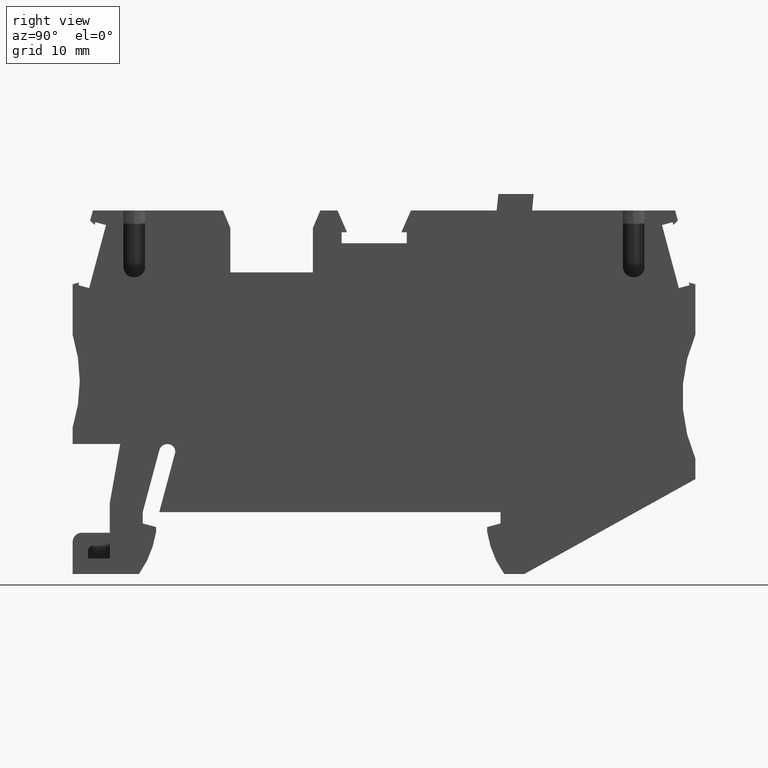
[diagram: clean part render]
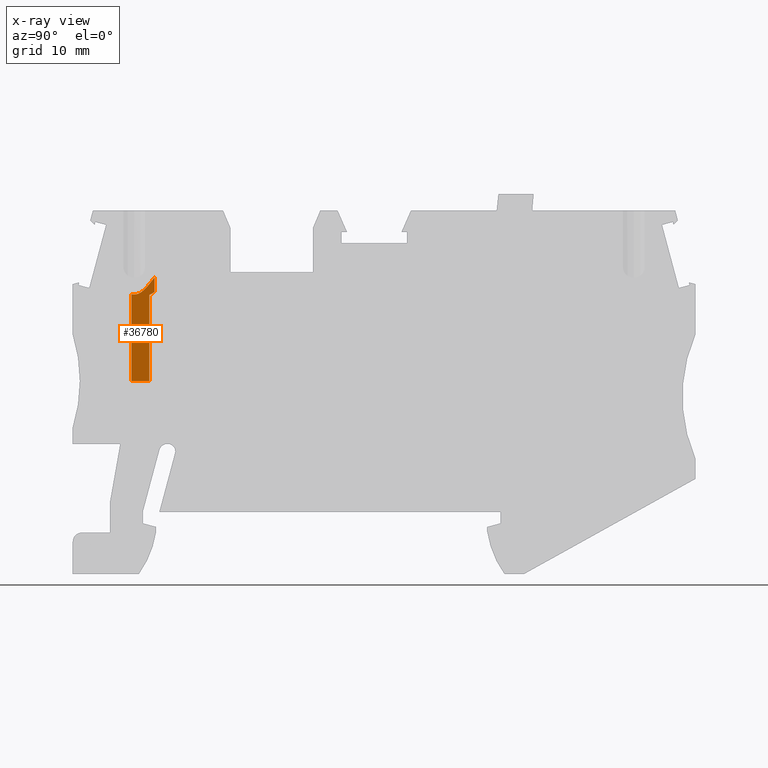
[diagram: x-ray — body ghosted, one internal face saturated and labeled with its STEP entity id]
A machine part, right view, then the same camera in x-ray: the body is ghosted and one INTERNAL B-rep face — a face not visible from any outside direction — is saturated and labeled: STEP entity #36780.
In plain terms, the highlighted planar face has unit normal (-1, 0, -0).
Its self-contained STEP definition (entity closure, byte-faithful):
#31900=CARTESIAN_POINT('',(-16.3428327783243,-15.6445224466539,
51.2700000000041));
#31910=DIRECTION('',(9.82847595262712E-14,1.,0.));
#31920=DIRECTION('',(-1.,9.7158392442509E-14,-1.24382875640964E-16));
#31930=AXIS2_PLACEMENT_3D('',#31900,#31910,#31920);
#31940=CONICAL_SURFACE('',#31930,2.4,0.5235987755983);
#34290=CARTESIAN_POINT('',(-14.4303736284335,-15.6445224466525,
52.720000000004));
#34300=VERTEX_POINT('',#34290);
#34330=CARTESIAN_POINT('',(-14.430373628433,-6.9902184466547,
52.7200000000041));
#34340=DIRECTION('',(-2.14536721721004E-13,-1.,8.45638444024485E-18));
#34350=VECTOR('',#34340,1.);
#34360=LINE('',#34330,#34350);
#34370=CARTESIAN_POINT('',(-14.4303736284351,-17.0682843751335,
52.7200000000042));
#34380=VERTEX_POINT('',#34370);
#34390=EDGE_CURVE('',#34300,#34380,#34360,.T.);
#34870=CARTESIAN_POINT('',(15.6638480474138,0.306622610467798,
52.7200000000042));
#34880=DIRECTION('',(-0.866025403784467,-0.49999999999995,
-1.03490537880703E-16));
#34890=VECTOR('',#34880,1.);
#34900=LINE('',#34870,#34890);
#34910=CARTESIAN_POINT('',(-14.9183196337143,-17.3500001326314,
52.7200000000041));
#34920=VERTEX_POINT('',#34910);
#34930=EDGE_CURVE('',#34380,#34920,#34900,.T.);
#35220=CARTESIAN_POINT('',(-16.5335764826809,-18.2945224466541,
52.7200000000041));
#35230=DIRECTION('',(1.24382875640963E-16,-8.45638444027153E-18,-1.));
#35240=DIRECTION('',(1.,-9.71445146547012E-14,1.24382875640964E-16));
#35250=AXIS2_PLACEMENT_3D('',#35220,#35230,#35240);
#35260=PLANE('',#35250);
#35270=CARTESIAN_POINT('',(15.6638480474141,-25.6999999999998,
52.7200000000042));
#35280=DIRECTION('',(1.,1.10467190950203E-14,1.24382875640963E-16));
#35290=VECTOR('',#35280,1.);
#35300=LINE('',#35270,#35290);
#35310=CARTESIAN_POINT('',(-16.6678327783269,-25.7000000000001,
52.7200000000041));
#35320=VERTEX_POINT('',#35310);
#35330=CARTESIAN_POINT('',(-14.9183196337142,-25.7000000000001,
52.7200000000041));
#35340=VERTEX_POINT('',#35330);
#35350=EDGE_CURVE('',#35320,#35340,#35300,.T.);
#35360=ORIENTED_EDGE('',*,*,#35350,.F.);
#35370=CARTESIAN_POINT('',(-14.9183196337144,1.30029320644098E-12,
52.7200000000041));
#35380=DIRECTION('',(9.39526234589039E-15,-1.,8.4563844402727E-18));
#35390=VECTOR('',#35380,1.);
#35400=LINE('',#35370,#35390);
#35410=EDGE_CURVE('',#34920,#35340,#35400,.T.);
#35420=ORIENTED_EDGE('',*,*,#35410,.T.);
#35430=ORIENTED_EDGE('',*,*,#34930,.T.);
#35440=ORIENTED_EDGE('',*,*,#34390,.T.);
#35450=CARTESIAN_POINT('',(-16.3428327783258,-17.2899707138443,
52.7200000000041));
#35460=CARTESIAN_POINT('',(-16.3292943042648,-17.2899707138443,
52.7200000000041));
#35470=CARTESIAN_POINT('',(-16.3157351983007,-17.2896419499035,
52.7200000000041));
#35480=CARTESIAN_POINT('',(-16.3021730202063,-17.2889835099416,
52.7200000000041));
#35490=CARTESIAN_POINT('',(-16.2886109178048,-17.2883250736546,
52.7200000000041));
#35500=CARTESIAN_POINT('',(-16.2750460781787,-17.2873369516305,
52.7200000000041));
#35510=CARTESIAN_POINT('',(-16.2614979949154,-17.2860227420375,
52.7200000000041));
#35520=CARTESIAN_POINT('',(-16.2479499538615,-17.2847085365389,
52.7200000000041));
#35530=CARTESIAN_POINT('',(-16.2344189980427,-17.2830682731594,
52.7200000000036));
#35540=CARTESIAN_POINT('',(-16.2209253275624,-17.281110224506,
52.7200000000036));
#35550=CARTESIAN_POINT('',(-16.2074316708814,-17.2791521778549,
52.7200000000036));
#35560=CARTESIAN_POINT('',(-16.193975599227,-17.2768764077949,
52.7200000000027));
#35570=CARTESIAN_POINT('',(-16.1805769789593,-17.2742956291562,
52.7200000000027));
#35580=CARTESIAN_POINT('',(-16.1671783490631,-17.2717148486629,
52.7200000000027));
#35590=CARTESIAN_POINT('',(-16.1538374252632,-17.268829142847,
52.720000000002));
#35600=CARTESIAN_POINT('',(-16.1405729253491,-17.2656551301044,
52.720000000002));
#35610=CARTESIAN_POINT('',(-16.1273083968791,-17.2624811105289,
52.720000000002));
#35620=CARTESIAN_POINT('',(-16.1141204945192,-17.2590188770311,
52.7200000000026));
#35630=CARTESIAN_POINT('',(-16.101026202225,-17.2552882111528,
52.7200000000026));
#35640=CARTESIAN_POINT('',(-16.0748365913709,-17.247826587005,
52.7200000000026));
#35650=CARTESIAN_POINT('',(-16.0490262357034,-17.2392906463764,
52.7200000000041));
#35660=CARTESIAN_POINT('',(-16.0237019093393,-17.2298624719458,
52.7200000000041));
#35670=CARTESIAN_POINT('',(-15.9983721200633,-17.2204322636887,
52.7200000000041));
#35680=CARTESIAN_POINT('',(-15.9733832442913,-17.2100583322197,
52.7200000000041));
#35690=CARTESIAN_POINT('',(-15.9487352275113,-17.1988613143543,
52.7200000000041));
#35700=CARTESIAN_POINT('',(-15.9240871497142,-17.1876642687702,
52.7200000000041));
#35710=CARTESIAN_POINT('',(-15.8997795169195,-17.1756440894236,
52.7200000000041));
#35720=CARTESIAN_POINT('',(-15.8758117558646,-17.1629171618673,
52.7200000000041));
#35730=CARTESIAN_POINT('',(-15.851843970093,-17.1501902211864,
52.7200000000041));
#35740=CARTESIAN_POINT('',(-15.8282156471718,-17.1367563690852,
52.7200000000041));
#35750=CARTESIAN_POINT('',(-15.8049278200811,-17.1227272977964,
52.7200000000041));
#35760=CARTESIAN_POINT('',(-15.7816400000363,-17.1086982307522,
52.7200000000041));
#35770=CARTESIAN_POINT('',(-15.7586923461197,-17.0940737462579,
52.7200000000041));
#35780=CARTESIAN_POINT('',(-15.7360889070998,-17.0789612580018,
52.7200000000041));
#35790=CARTESIAN_POINT('',(-15.713485495444,-17.063848788041,
52.7200000000041));
#35800=CARTESIAN_POINT('',(-15.6912260600155,-17.0482481285259,
52.7199999999831));
#35810=CARTESIAN_POINT('',(-15.6693183676773,-17.0322631008446,
52.7199999999831));
#35820=CARTESIAN_POINT('',(-15.6474013924807,-17.0162712998919,
52.7199999999831));
#35830=CARTESIAN_POINT('',(-15.625877782421,-16.9999273113839,
52.7199999999946));
#35840=CARTESIAN_POINT('',(-15.6046313106696,-16.9832314368155,
52.7199999999946));
#35850=CARTESIAN_POINT('',(-15.5833821568609,-16.9665334546363,
52.7199999999946));
#35860=CARTESIAN_POINT('',(-15.5624128019957,-16.9494837553501,
52.7200000000041));
#35870=CARTESIAN_POINT('',(-15.5416943880988,-16.9321294559765,
52.7200000000041));
#35880=CARTESIAN_POINT('',(-15.5209758896078,-16.9147750857447,
52.7200000000041));
#35890=CARTESIAN_POINT('',(-15.5005080925218,-16.8971157807207,
52.7200000000041));
#35900=CARTESIAN_POINT('',(-15.4802653746817,-16.8791905324853,
52.7200000000041));
#35910=CARTESIAN_POINT('',(-15.4600226097754,-16.861265242572,
52.7200000000041));
#35920=CARTESIAN_POINT('',(-15.4400047668123,-16.8430737505517,
52.7200000000041));
#35930=CARTESIAN_POINT('',(-15.4201896273423,-16.8246489346476,
52.7200000000041));
#35940=CARTESIAN_POINT('',(-15.4003744667203,-16.8062240990758,
52.7200000000041));
#35950=CARTESIAN_POINT('',(-15.3807619092757,-16.7875657434327,
52.7200000000041));
#35960=CARTESIAN_POINT('',(-15.3613330787208,-16.7687022294481,
52.7200000000041));
#35970=CARTESIAN_POINT('',(-15.3419042439829,-16.749838711402,
52.7200000000041));
#35980=CARTESIAN_POINT('',(-15.3226590746163,-16.7307698888216,
52.7200000000041));
#35990=CARTESIAN_POINT('',(-15.3035818368223,-16.7115208326519,
52.7200000000041));
#36000=CARTESIAN_POINT('',(-15.2845046051091,-16.6922717826176,
52.7200000000041));
#36010=CARTESIAN_POINT('',(-15.2655952695526,-16.6728423917733,
52.7200000000041));
#36020=CARTESIAN_POINT('',(-15.2468409622412,-16.6532553525717,
52.7200000000041));
#36030=CARTESIAN_POINT('',(-15.2093326166634,-16.6140815551596,
52.7200000000041));
#36040=CARTESIAN_POINT('',(-15.1724415775094,-16.574277638415,
52.7200000000041));
#36050=CARTESIAN_POINT('',(-15.1360950238079,-16.5340068529717,
52.7200000000041));
#36060=CARTESIAN_POINT('',(-15.0997486110045,-16.4937362236388,
52.7200000000041));
#36070=CARTESIAN_POINT('',(-15.0639466948452,-16.4529975122142,
52.7200000000041));
#36080=CARTESIAN_POINT('',(-15.0286465360762,-16.4119375714403,
52.7200000000041));
#36090=CARTESIAN_POINT('',(-14.993340265949,-16.3708705221429,
52.7200000000041));
#36100=CARTESIAN_POINT('',(-14.9585762889177,-16.3295310591369,
52.7199999999913));
#36110=CARTESIAN_POINT('',(-14.9241559532367,-16.2878377190566,
52.7199999999913));
#36120=CARTESIAN_POINT('',(-14.8897418059278,-16.2461518749489,
52.7199999999913));
#36130=CARTESIAN_POINT('',(-14.8557061716529,-16.2041519230004,
52.7200000000041));
#36140=CARTESIAN_POINT('',(-14.8219933250429,-16.1618897516298,
52.7200000000041));
#36150=CARTESIAN_POINT('',(-14.7882804364147,-16.1196275275853,
52.7200000000041));
#36160=CARTESIAN_POINT('',(-14.7548903243207,-16.0771025986621,
52.7200000000041));
#36170=CARTESIAN_POINT('',(-14.7217782805485,-16.0343562448526,
52.7200000000041));
#36180=CARTESIAN_POINT('',(-14.6886662232882,-15.9916098736306,
52.7200000000041));
#36190=CARTESIAN_POINT('',(-14.6558322522868,-15.9486417568259,
52.7200000000041));
#36200=CARTESIAN_POINT('',(-14.6232405174714,-15.9054858852001,
52.7200000000041));
#36210=CARTESIAN_POINT('',(-14.5906487846556,-15.8623300162221,
52.7200000000041));
#36220=CARTESIAN_POINT('',(-14.5582993195889,-15.8189861805476,
52.7200000000041));
#36230=CARTESIAN_POINT('',(-14.5261634209569,-15.7754832993153,
52.7200000000041));
#36240=CARTESIAN_POINT('',(-14.494027531129,-15.7319804300013,
52.7200000000041));
#36250=CARTESIAN_POINT('',(-14.4621052450975,-15.6883183765745,
52.7200000000041));
#36260=CARTESIAN_POINT('',(-14.4303736284334,-15.6445224466536,
52.7200000000041));
#36270=B_SPLINE_CURVE_WITH_KNOTS('',3,(#35450,#35460,#35470,#35480,
#35490,#35500,#35510,#35520,#35530,#35540,#35550,#35560,#35570,#35580,
#35590,#35600,#35610,#35620,#35630,#35640,#35650,#35660,#35670,#35680,
#35690,#35700,#35710,#35720,#35730,#35740,#35750,#35760,#35770,#35780,
#35790,#35800,#35810,#35820,#35830,#35840,#35850,#35860,#35870,#35880,
#35890,#35900,#35910,#35920,#35930,#35940,#35950,#35960,#35970,#35980,
#35990,#36000,#36010,#36020,#36030,#36040,#36050,#36060,#36070,#36080,
#36090,#36100,#36110,#36120,#36130,#36140,#36150,#36160,#36170,#36180,
#36190,#36200,#36210,#36220,#36230,#36240,#36250,#36260),.UNSPECIFIED.,
.F.,.F.,(4,3,3,3,3,3,3,3,3,3,3,3,3,3,3,3,3,3,3,3,3,3,3,3,3,3,3,4),(0.,
0.0406757292667501,0.0814623168599995,0.12233513120195,0.163258542289737
,0.204188482706833,0.2450745451966,0.326492896131912,0.407633290064072,
0.488946970045198,0.570441599555911,0.65202281313679,0.733508724120969,
0.814682725570968,0.895756784196192,0.976852205749027,1.0579953221223,
1.13920112883486,1.22047303014071,1.30180295515494,1.4645505600788,
1.62717702907068,1.7894112138411,1.95158615350891,2.11378447957647,
2.27601144746608,2.43826088857872,2.60051567672069),.UNSPECIFIED.);
#36280=SURFACE_CURVE('',#36270,(#31940,#35260),.CURVE_3D.);
#36290=CARTESIAN_POINT('',(-16.3428327783258,-17.2899707138443,
52.7200000000041));
#36300=VERTEX_POINT('',#36290);
#36310=EDGE_CURVE('',#36300,#34300,#36280,.T.);
#36320=ORIENTED_EDGE('',*,*,#36310,.T.);
#36330=CARTESIAN_POINT('',(148.304479673356,-17.2899707138629,
52.7200000000042));
#36340=DIRECTION('',(1.,-1.13048459482457E-13,1.24382875640964E-16));
#36350=VECTOR('',#36340,1.);
#36360=LINE('',#36330,#36350);
#36370=CARTESIAN_POINT('',(-16.4428327783245,-17.2899707138443,
52.7200000000041));
#36380=VERTEX_POINT('',#36370);
#36390=EDGE_CURVE('',#36380,#36300,#36360,.T.);
#36400=ORIENTED_EDGE('',*,*,#36390,.T.);
#36410=CARTESIAN_POINT('',(-16.5335764826811,-18.2945224466541,
52.7200000000041));
#36420=DIRECTION('',(1.24382875640963E-16,-8.45638444027153E-18,-1.));
#36430=DIRECTION('',(1.,-1.13048459482457E-13,1.24382875640964E-16));
#36440=AXIS2_PLACEMENT_3D('',#36410,#36420,#36430);
#36450=PLANE('',#36440);
#36460=CARTESIAN_POINT('',(-16.4428327783243,-15.6445224466539,
51.2700000000041));
#36470=DIRECTION('',(8.80289585322254E-14,1.,0.));
#36480=DIRECTION('',(-1.,9.7158392442509E-14,-1.24382875640964E-16));
#36490=AXIS2_PLACEMENT_3D('',#36460,#36470,#36480);
#36500=CONICAL_SURFACE('',#36490,2.4,0.523598775598299);
#36510=CARTESIAN_POINT('',(-16.4428327782957,-17.2899707138443,
52.7200000000041));
#36520=CARTESIAN_POINT('',(-16.4618194178063,-17.289970713845,
52.7200000000041));
#36530=CARTESIAN_POINT('',(-16.4808307742775,-17.2893231063803,
52.7200000000041));
#36540=CARTESIAN_POINT('',(-16.4998034737538,-17.2880329619891,
52.7200000000041));
#36550=CARTESIAN_POINT('',(-16.5187761619401,-17.2867428183656,
52.7200000000041));
#36560=CARTESIAN_POINT('',(-16.5377082460672,-17.2848103415672,
52.7200000000041));
#36570=CARTESIAN_POINT('',(-16.5565377991921,-17.2822606885972,
52.7200000000041));
#36580=CARTESIAN_POINT('',(-16.5753674759552,-17.2797110188858,
52.7200000000041));
#36590=CARTESIAN_POINT('',(-16.5940929611376,-17.276544622085,
52.7200000000041));
#36600=CARTESIAN_POINT('',(-16.6126591516292,-17.2728038427079,
52.7200000000041));
#36610=CARTESIAN_POINT('',(-16.6312255931342,-17.2690630127559,
52.7200000000041));
#36620=CARTESIAN_POINT('',(-16.6496315065029,-17.264748374063,
52.7200000000041));
#36630=CARTESIAN_POINT('',(-16.6678327783192,-17.2599143338473,
52.7200000000041));
#36640=B_SPLINE_CURVE_WITH_KNOTS('',3,(#36510,#36520,#36530,#36540,
#36550,#36560,#36570,#36580,#36590,#36600,#36610,#36620,#36630),
.UNSPECIFIED.,.F.,.F.,(4,3,3,3,4),(0.,0.057014590889699,
0.114052372413493,0.170974705669885,0.227642657623957),.UNSPECIFIED.);
#36650=SURFACE_CURVE('',#36640,(#36450,#36500),.CURVE_3D.);
#36660=CARTESIAN_POINT('',(-16.6678327783259,-17.2599143338473,
52.7200000000041));
#36670=VERTEX_POINT('',#36660);
#36680=EDGE_CURVE('',#36380,#36670,#36650,.T.);
#36690=ORIENTED_EDGE('',*,*,#36680,.F.);
#36700=CARTESIAN_POINT('',(-16.6678327783261,-18.2945224466541,
52.7200000000041));
#36710=DIRECTION('',(-1.13103970633688E-13,-1.,8.45638444025747E-18));
#36720=VECTOR('',#36710,1.);
#36730=LINE('',#36700,#36720);
#36740=EDGE_CURVE('',#36670,#35320,#36730,.T.);
#36750=ORIENTED_EDGE('',*,*,#36740,.F.);
#36760=EDGE_LOOP('',(#36750,#36690,#36400,#36320,#35440,#35430,#35420,
#35360));
#36770=FACE_OUTER_BOUND('',#36760,.T.);
#36780=ADVANCED_FACE('',(#36770),#35260,.T.);